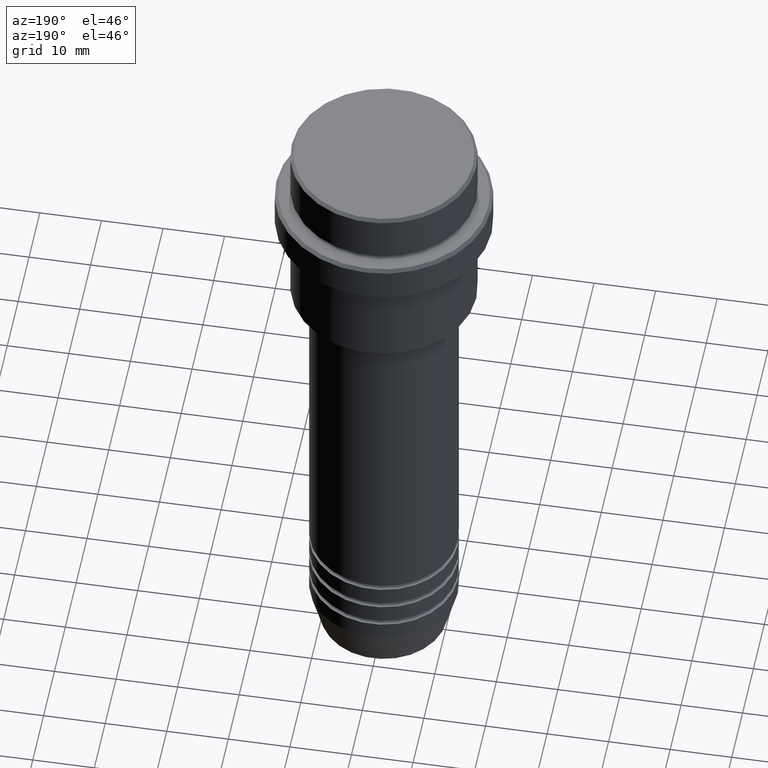
[diagram: clean part render]
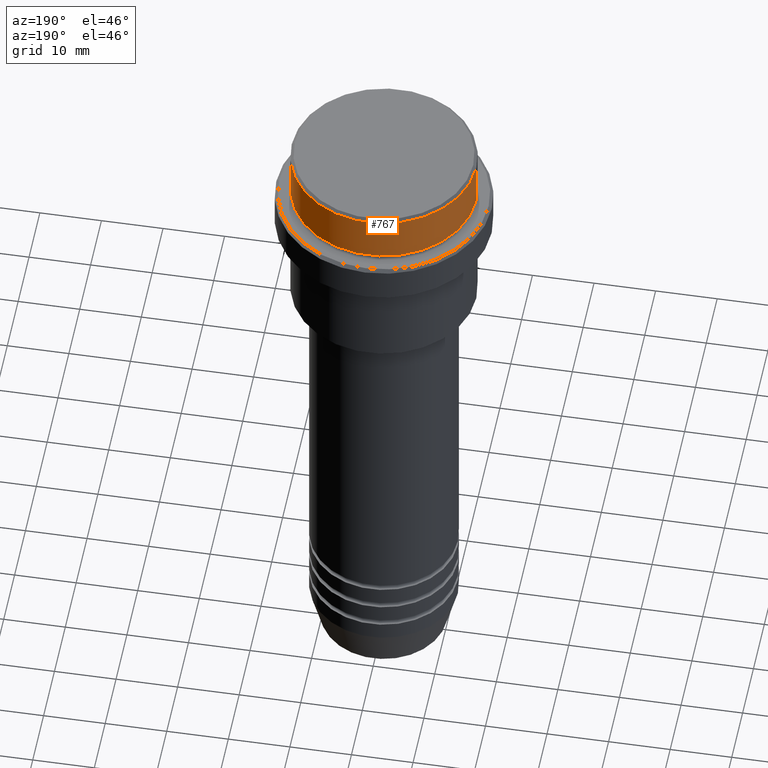
[diagram: same view with one face highlighted and labeled with its STEP entity id]
A machine part, auxiliary view. The second image highlights one B-rep face of the part: STEP entity #767.
In plain terms, the highlighted cylindrical surface (partial cylindrical patch) has radius 15 mm, axis along (-0, -0, 1).
Its self-contained STEP definition (entity closure, byte-faithful):
#6 = VERTEX_POINT ( 'NONE', #960 ) ;
#30 = VERTEX_POINT ( 'NONE', #1369 ) ;
#65 = DIRECTION ( 'NONE',  ( 1.000000000000000000, 0.000000000000000000, 0.000000000000000000 ) ) ;
#74 = VECTOR ( 'NONE', #1203, 1000.000000000000000 ) ;
#112 = EDGE_CURVE ( 'NONE', #520, #6, #673, .T. ) ;
#128 = AXIS2_PLACEMENT_3D ( 'NONE', #1125, #266, #65 ) ;
#155 = LINE ( 'NONE', #814, #323 ) ;
#196 = CIRCLE ( 'NONE', #997, 15.00000000000000000 ) ;
#258 = EDGE_CURVE ( 'NONE', #405, #30, #155, .T. ) ;
#266 = DIRECTION ( 'NONE',  ( -0.000000000000000000, -0.000000000000000000, 1.000000000000000000 ) ) ;
#323 = VECTOR ( 'NONE', #1117, 1000.000000000000000 ) ;
#360 = CARTESIAN_POINT ( 'NONE',  ( -15.00000000000000000, 1.836970198721029589E-15, 0.000000000000000000 ) ) ;
#368 = CARTESIAN_POINT ( 'NONE',  ( -15.00000000000000000, 1.836970198721029589E-15, -7.999999999999998224 ) ) ;
#402 = EDGE_LOOP ( 'NONE', ( #761, #491, #502, #636 ) ) ;
#405 = VERTEX_POINT ( 'NONE', #1164 ) ;
#470 = EDGE_CURVE ( 'NONE', #405, #520, #716, .T. ) ;
#472 = EDGE_CURVE ( 'NONE', #6, #30, #196, .T. ) ;
#491 = ORIENTED_EDGE ( 'NONE', *, *, #112, .T. ) ;
#502 = ORIENTED_EDGE ( 'NONE', *, *, #472, .T. ) ;
#520 = VERTEX_POINT ( 'NONE', #368 ) ;
#553 = DIRECTION ( 'NONE',  ( 1.000000000000000000, 0.000000000000000000, 0.000000000000000000 ) ) ;
#636 = ORIENTED_EDGE ( 'NONE', *, *, #258, .F. ) ;
#673 = LINE ( 'NONE', #360, #74 ) ;
#716 = CIRCLE ( 'NONE', #1221, 15.00000000000000000 ) ;
#761 = ORIENTED_EDGE ( 'NONE', *, *, #470, .T. ) ;
#767 = ADVANCED_FACE ( 'NONE', ( #1234 ), #1140, .T. ) ;
#814 = CARTESIAN_POINT ( 'NONE',  ( 15.00000000000000000, 0.000000000000000000, 0.000000000000000000 ) ) ;
#960 = CARTESIAN_POINT ( 'NONE',  ( -15.00000000000000000, 1.836970198721029589E-15, -0.5000000000000108802 ) ) ;
#997 = AXIS2_PLACEMENT_3D ( 'NONE', #1191, #1185, #553 ) ;
#1117 = DIRECTION ( 'NONE',  ( -0.000000000000000000, -0.000000000000000000, 1.000000000000000000 ) ) ;
#1125 = CARTESIAN_POINT ( 'NONE',  ( 0.000000000000000000, 0.000000000000000000, 0.000000000000000000 ) ) ;
#1140 = CYLINDRICAL_SURFACE ( 'NONE', #128, 15.00000000000000000 ) ;
#1164 = CARTESIAN_POINT ( 'NONE',  ( 15.00000000000000000, 0.000000000000000000, -7.999999999999998224 ) ) ;
#1171 = DIRECTION ( 'NONE',  ( -0.000000000000000000, -0.000000000000000000, 1.000000000000000000 ) ) ;
#1185 = DIRECTION ( 'NONE',  ( 0.000000000000000000, 0.000000000000000000, -1.000000000000000000 ) ) ;
#1191 = CARTESIAN_POINT ( 'NONE',  ( 0.000000000000000000, 0.000000000000000000, -0.5000000000000108802 ) ) ;
#1203 = DIRECTION ( 'NONE',  ( -0.000000000000000000, -0.000000000000000000, 1.000000000000000000 ) ) ;
#1221 = AXIS2_PLACEMENT_3D ( 'NONE', #1281, #1171, #1399 ) ;
#1234 = FACE_OUTER_BOUND ( 'NONE', #402, .T. ) ;
#1281 = CARTESIAN_POINT ( 'NONE',  ( 0.000000000000000000, 0.000000000000000000, -7.999999999999998224 ) ) ;
#1369 = CARTESIAN_POINT ( 'NONE',  ( 15.00000000000000000, 0.000000000000000000, -0.5000000000000108802 ) ) ;
#1399 = DIRECTION ( 'NONE',  ( 1.000000000000000000, 0.000000000000000000, 0.000000000000000000 ) ) ;